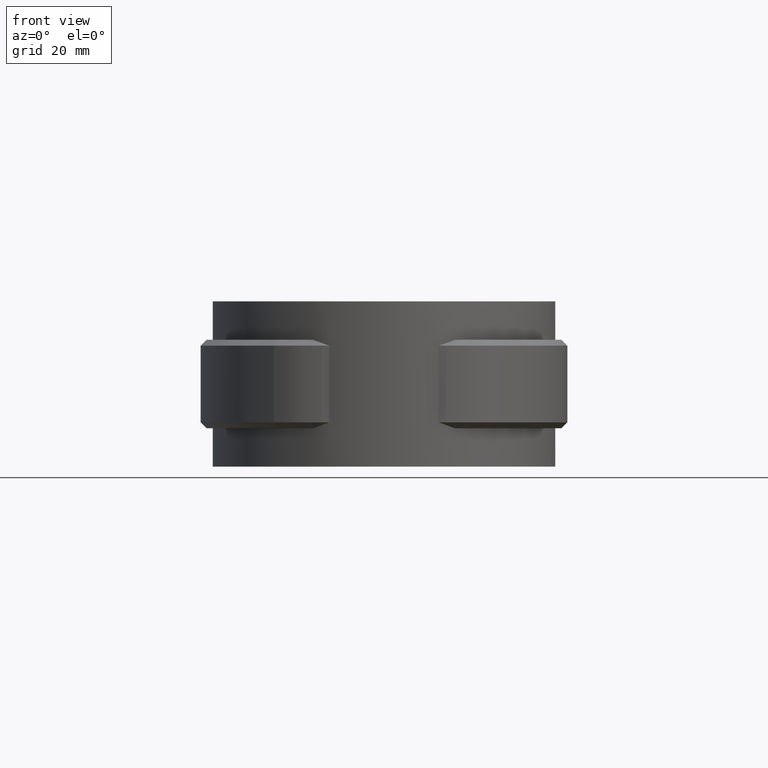
[diagram: clean part render]
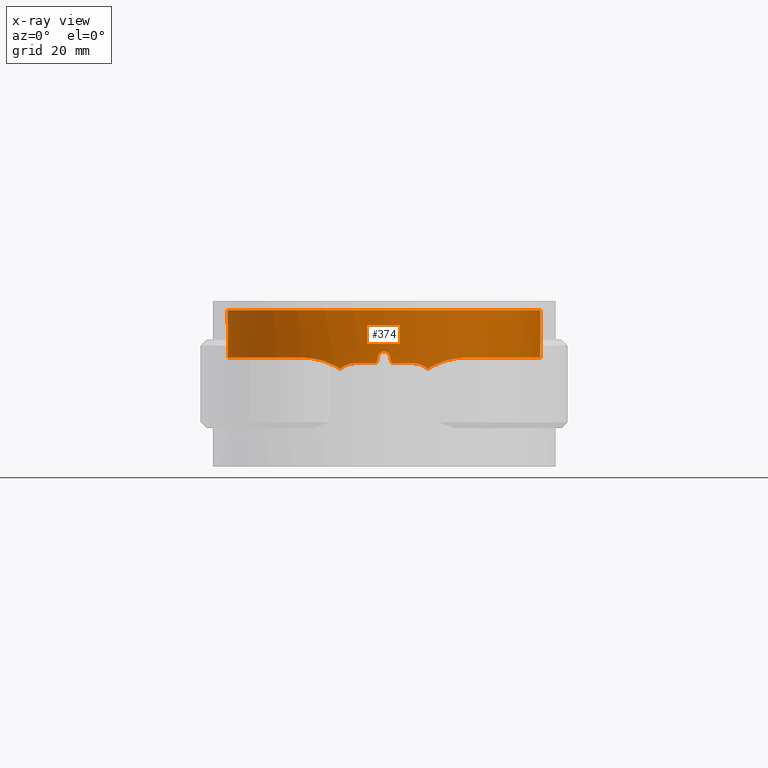
[diagram: x-ray — body ghosted, one internal face saturated and labeled with its STEP entity id]
A machine part, front view, then the same camera in x-ray: the body is ghosted and one INTERNAL B-rep face — a face not visible from any outside direction — is saturated and labeled: STEP entity #374.
In plain terms, the highlighted cylindrical surface (partial cylindrical patch) has radius 26.5 mm, axis along (0, 0, 1).
Its self-contained STEP definition (entity closure, byte-faithful):
#374 = ADVANCED_FACE( '', ( #746 ), #747, .F. );
#746 = FACE_OUTER_BOUND( '', #1703, .T. );
#747 = CYLINDRICAL_SURFACE( '', #1704, 26.5000000000000 );
#1703 = EDGE_LOOP( '', ( #3499, #3500, #3501, #3502, #3503, #3504, #3505, #3506, #3507, #3508, #3509, #3510, #3511, #3512, #3513, #3514, #3515, #3516 ) );
#1704 = AXIS2_PLACEMENT_3D( '', #3517, #3518, #3519 );
#3499 = ORIENTED_EDGE( '', *, *, #7262, .T. );
#3500 = ORIENTED_EDGE( '', *, *, #7227, .T. );
#3501 = ORIENTED_EDGE( '', *, *, #7229, .T. );
#3502 = ORIENTED_EDGE( '', *, *, #7263, .T. );
#3503 = ORIENTED_EDGE( '', *, *, #7264, .T. );
#3504 = ORIENTED_EDGE( '', *, *, #7265, .T. );
#3505 = ORIENTED_EDGE( '', *, *, #7266, .T. );
#3506 = ORIENTED_EDGE( '', *, *, #7267, .T. );
#3507 = ORIENTED_EDGE( '', *, *, #7268, .T. );
#3508 = ORIENTED_EDGE( '', *, *, #7269, .T. );
#3509 = ORIENTED_EDGE( '', *, *, #7270, .T. );
#3510 = ORIENTED_EDGE( '', *, *, #7271, .T. );
#3511 = ORIENTED_EDGE( '', *, *, #7249, .T. );
#3512 = ORIENTED_EDGE( '', *, *, #7272, .F. );
#3513 = ORIENTED_EDGE( '', *, *, #7214, .T. );
#3514 = ORIENTED_EDGE( '', *, *, #7273, .T. );
#3515 = ORIENTED_EDGE( '', *, *, #7245, .T. );
#3516 = ORIENTED_EDGE( '', *, *, #7257, .T. );
#3517 = CARTESIAN_POINT( '', ( 0.000000000000000, 0.000000000000000, 0.000000000000000 ) );
#3518 = DIRECTION( '', ( 0.000000000000000, 0.000000000000000, 1.00000000000000 ) );
#3519 = DIRECTION( '', ( 1.00000000000000, -6.12303176911189E-017, 0.000000000000000 ) );
#7214 = EDGE_CURVE( '', #8212, #8210, #8213, .T. );
#7227 = EDGE_CURVE( '', #8218, #8235, #8237, .T. );
#7229 = EDGE_CURVE( '', #8235, #8238, #8240, .T. );
#7245 = EDGE_CURVE( '', #8268, #8266, #8269, .T. );
#7249 = EDGE_CURVE( '', #8275, #8276, #8277, .T. );
#7257 = EDGE_CURVE( '', #8266, #8289, #8291, .T. );
#7262 = EDGE_CURVE( '', #8289, #8218, #8299, .T. );
#7263 = EDGE_CURVE( '', #8238, #8300, #8301, .T. );
#7264 = EDGE_CURVE( '', #8300, #8302, #8303, .T. );
#7265 = EDGE_CURVE( '', #8302, #8304, #8305, .T. );
#7266 = EDGE_CURVE( '', #8304, #8306, #8307, .T. );
#7267 = EDGE_CURVE( '', #8306, #8308, #8309, .T. );
#7268 = EDGE_CURVE( '', #8308, #8310, #8311, .T. );
#7269 = EDGE_CURVE( '', #8310, #8312, #8313, .T. );
#7270 = EDGE_CURVE( '', #8312, #8314, #8315, .T. );
#7271 = EDGE_CURVE( '', #8314, #8275, #8316, .T. );
#7272 = EDGE_CURVE( '', #8212, #8276, #8317, .T. );
#7273 = EDGE_CURVE( '', #8210, #8268, #8318, .T. );
#8210 = VERTEX_POINT( '', #9982 );
#8212 = VERTEX_POINT( '', #9984 );
#8213 = CIRCLE( '', #9985, 26.5000000000000 );
#8218 = VERTEX_POINT( '', #9991 );
#8235 = VERTEX_POINT( '', #10067 );
#8237 = B_SPLINE_CURVE_WITH_KNOTS( '', 3, ( #10070, #10071, #10072, #10073, #10074, #10075, #10076, #10077, #10078, #10079 ), .UNSPECIFIED., .F., .F., ( 4, 2, 2, 2, 4 ), ( 0.00840987655506248, 0.00908564043803561, 0.00976140432100873, 0.0104371682039819, 0.0111129320869550 ), .UNSPECIFIED. );
#8238 = VERTEX_POINT( '', #10080 );
#8240 = CIRCLE( '', #10083, 26.5000000000000 );
#8266 = VERTEX_POINT( '', #10371 );
#8268 = VERTEX_POINT( '', #10379 );
#8269 = B_SPLINE_CURVE_WITH_KNOTS( '', 3, ( #10380, #10381, #10382, #10383, #10384, #10385, #10386, #10387, #10388, #10389, #10390, #10391, #10392, #10393, #10394, #10395, #10396, #10397, #10398, #10399, #10400, #10401, #10402, #10403, #10404, #10405, #10406, #10407, #10408, #10409, #10410, #10411, #10412, #10413, #10414, #10415, #10416, #10417, #10418, #10419, #10420, #10421, #10422, #10423 ), .UNSPECIFIED., .F., .F., ( 4, 2, 2, 2, 2, 2, 2, 2, 2, 2, 2, 2, 2, 2, 2, 2, 2, 2, 2, 2, 2, 4 ), ( 6.99289389267470E-018, 0.00386953894842186, 0.00773907789684370, 0.00967384737105463, 0.0116086168452656, 0.0154781557936874, 0.0174129252678983, 0.0193476947421093, 0.0232172336905311, 0.0251520031647420, 0.0270867726389530, 0.0309563115873748, 0.0348258505357967, 0.0367606200100076, 0.0386953894842185, 0.0425649284326403, 0.0464344673810622, 0.0503040063294840, 0.0522387758036949, 0.0541735452779059, 0.0580430842263277, 0.0619126231747495 ), .UNSPECIFIED. );
#8275 = VERTEX_POINT( '', #10459 );
#8276 = VERTEX_POINT( '', #10460 );
#8277 = B_SPLINE_CURVE_WITH_KNOTS( '', 3, ( #10461, #10462, #10463, #10464, #10465, #10466, #10467, #10468, #10469, #10470, #10471, #10472, #10473, #10474, #10475, #10476, #10477, #10478, #10479, #10480, #10481, #10482, #10483, #10484, #10485, #10486, #10487, #10488, #10489, #10490, #10491, #10492, #10493, #10494, #10495, #10496, #10497, #10498, #10499, #10500, #10501, #10502, #10503, #10504 ), .UNSPECIFIED., .F., .F., ( 4, 2, 2, 2, 2, 2, 2, 2, 2, 2, 2, 2, 2, 2, 2, 2, 2, 2, 2, 2, 2, 4 ), ( 6.25463444138550E-018, 0.00386953623061384, 0.00773907246122767, 0.00967384057653460, 0.0116086086918415, 0.0154781449224554, 0.0174129130377623, 0.0193476811530692, 0.0232172173836830, 0.0251519854989899, 0.0270867536142969, 0.0309562898449107, 0.0348258260755245, 0.0367605941908314, 0.0386953623061384, 0.0425648985367522, 0.0464344347673660, 0.0503039709979798, 0.0522387391132867, 0.0541735072285937, 0.0580430434592075, 0.0619125796898213 ), .UNSPECIFIED. );
#8289 = VERTEX_POINT( '', #10599 );
#8291 = B_SPLINE_CURVE_WITH_KNOTS( '', 3, ( #10605, #10606, #10607, #10608, #10609, #10610, #10611, #10612, #10613, #10614 ), .UNSPECIFIED., .F., .F., ( 4, 2, 2, 2, 4 ), ( 0.000000000000000, 0.00167477549789547, 0.00334955099579095, 0.00502432649368642, 0.00669910199158190 ), .UNSPECIFIED. );
#8299 = B_SPLINE_CURVE_WITH_KNOTS( '', 3, ( #10643, #10644, #10645, #10646 ), .UNSPECIFIED., .F., .F., ( 4, 4 ), ( 5.06069652024954E-015, 0.00108053833113796 ), .UNSPECIFIED. );
#8300 = VERTEX_POINT( '', #10647 );
#8301 = B_SPLINE_CURVE_WITH_KNOTS( '', 3, ( #10648, #10649, #10650, #10651, #10652, #10653 ), .UNSPECIFIED., .F., .F., ( 4, 2, 4 ), ( 8.20849171219253E-018, 0.000336060167012381, 0.000672120334024754 ), .UNSPECIFIED. );
#8302 = VERTEX_POINT( '', #10654 );
#8303 = ELLIPSE( '', #10655, 120.722283805419, 26.5000000000000 );
#8304 = VERTEX_POINT( '', #10656 );
#8305 = B_SPLINE_CURVE_WITH_KNOTS( '', 3, ( #10657, #10658, #10659, #10660, #10661, #10662, #10663, #10664, #10665, #10666 ), .UNSPECIFIED., .F., .F., ( 4, 2, 2, 2, 4 ), ( 0.000000000000000, 0.000671613818563088, 0.00134322763712618, 0.00201484145568926, 0.00268645527425235 ), .UNSPECIFIED. );
#8306 = VERTEX_POINT( '', #10667 );
#8307 = ELLIPSE( '', #10668, 120.722345388658, 26.5000000000000 );
#8308 = VERTEX_POINT( '', #10669 );
#8309 = B_SPLINE_CURVE_WITH_KNOTS( '', 3, ( #10670, #10671, #10672, #10673, #10674, #10675 ), .UNSPECIFIED., .F., .F., ( 4, 2, 4 ), ( 2.04566856771261E-018, 0.000336065636993404, 0.000672131273986805 ), .UNSPECIFIED. );
#8310 = VERTEX_POINT( '', #10676 );
#8311 = CIRCLE( '', #10677, 26.5000000000000 );
#8312 = VERTEX_POINT( '', #10678 );
#8313 = B_SPLINE_CURVE_WITH_KNOTS( '', 3, ( #10679, #10680, #10681, #10682, #10683, #10684, #10685, #10686, #10687, #10688 ), .UNSPECIFIED., .F., .F., ( 4, 2, 2, 2, 4 ), ( 3.46944695195361E-018, 0.000676414896825245, 0.00135282979365049, 0.00202924469047573, 0.00270565958730097 ), .UNSPECIFIED. );
#8314 = VERTEX_POINT( '', #10689 );
#8315 = B_SPLINE_CURVE_WITH_KNOTS( '', 3, ( #10690, #10691, #10692, #10693 ), .UNSPECIFIED., .F., .F., ( 4, 4 ), ( 0.00823762377729515, 0.00931491977660909 ), .UNSPECIFIED. );
#8316 = B_SPLINE_CURVE_WITH_KNOTS( '', 3, ( #10694, #10695, #10696, #10697, #10698, #10699, #10700, #10701, #10702, #10703 ), .UNSPECIFIED., .F., .F., ( 4, 2, 2, 2, 4 ), ( 1.73472347597681E-018, 0.00166699003343402, 0.00333398006686803, 0.00500097010030205, 0.00666796013373607 ), .UNSPECIFIED. );
#8317 = LINE( '', #10704, #10705 );
#8318 = LINE( '', #10706, #10707 );
#9982 = CARTESIAN_POINT( '', ( 6.04385964912280, 25.8015844579690, 0.000000000000000 ) );
#9984 = CARTESIAN_POINT( '', ( -6.04385964912280, 25.8015844579689, 0.000000000000000 ) );
#9985 = AXIS2_PLACEMENT_3D( '', #13923, #13924, #13925 );
#9991 = CARTESIAN_POINT( '', ( 7.40905339638873, -25.4431902042464, -9.96101167128563 ) );
#10067 = CARTESIAN_POINT( '', ( 5.00000000000000, -26.0240273593462, -9.00000000000000 ) );
#10070 = CARTESIAN_POINT( '', ( 7.40905339638874, -25.4431902042464, -9.96101167128562 ) );
#10071 = CARTESIAN_POINT( '', ( 7.24763662634429, -25.4901947449008, -9.80785554460639 ) );
#10072 = CARTESIAN_POINT( '', ( 7.07408541333311, -25.5390720899026, -9.67215739365101 ) );
#10073 = CARTESIAN_POINT( '', ( 6.70316743055002, -25.6389241983042, -9.43442585938661 ) );
#10074 = CARTESIAN_POINT( '', ( 6.50370235312272, -25.6903936464893, -9.33179261985578 ) );
#10075 = CARTESIAN_POINT( '', ( 6.09403154520617, -25.7906426739549, -9.16807056670148 ) );
#10076 = CARTESIAN_POINT( '', ( 5.88307014533556, -25.8396775127156, -9.10601312208062 ) );
#10077 = CARTESIAN_POINT( '', ( 5.44861472041516, -25.9347651989478, -9.02182452402143 ) );
#10078 = CARTESIAN_POINT( '', ( 5.22445617697157, -25.9809025628126, -8.99999999999997 ) );
#10079 = CARTESIAN_POINT( '', ( 5.00000000000000, -26.0240273593462, -8.99999999999997 ) );
#10080 = CARTESIAN_POINT( '', ( 1.64999999999995, -26.4485821926242, -9.00000000000000 ) );
#10083 = AXIS2_PLACEMENT_3D( '', #13933, #13934, #13935 );
#10371 = CARTESIAN_POINT( '', ( 14.1618058989693, -22.3985100772333, -8.00447351404854 ) );
#10379 = CARTESIAN_POINT( '', ( 6.04385964912280, 25.8015844579690, -8.00552652639571 ) );
#10380 = CARTESIAN_POINT( '', ( 6.04385964912279, 25.8015844579690, -8.00552652639571 ) );
#10381 = CARTESIAN_POINT( '', ( 7.31779231474491, 25.5031737054822, -8.00680066398224 ) );
#10382 = CARTESIAN_POINT( '', ( 8.55377131480695, 25.1146868430128, -8.00847257392850 ) );
#10383 = CARTESIAN_POINT( '', ( 10.9529568115040, 24.1650002278904, -8.00944311649382 ) );
#10384 = CARTESIAN_POINT( '', ( 12.1161555429383, 23.6037820474472, -8.00874950359413 ) );
#10385 = CARTESIAN_POINT( '', ( 13.8051154540246, 22.6294327220562, -8.00678965374482 ) );
#10386 = CARTESIAN_POINT( '', ( 14.3608898139389, 22.2809092139690, -8.00601381780461 ) );
#10387 = CARTESIAN_POINT( '', ( 15.4379518302976, 21.5486360342049, -8.00479323261608 ) );
#10388 = CARTESIAN_POINT( '', ( 15.9602317834641, 21.1645629288973, -8.00438617796553 ) );
#10389 = CARTESIAN_POINT( '', ( 17.4794092076718, 19.9597380735161, -8.00454912951534 ) );
#10390 = CARTESIAN_POINT( '', ( 18.4288934061811, 19.0866556816490, -8.00595118561516 ) );
#10391 = CARTESIAN_POINT( '', ( 19.7578578109825, 17.6718897982799, -8.00708829540483 ) );
#10392 = CARTESIAN_POINT( '', ( 20.1849069197854, 17.1827089807674, -8.00733281936726 ) );
#10393 = CARTESIAN_POINT( '', ( 21.0062871984815, 16.1682359400479, -8.00740043787066 ) );
#10394 = CARTESIAN_POINT( '', ( 21.3987785267263, 15.6449107649844, -8.00722156171388 ) );
#10395 = CARTESIAN_POINT( '', ( 22.5087542741972, 14.0459888275849, -8.00621991817574 ) );
#10396 = CARTESIAN_POINT( '', ( 23.1649197282694, 12.9345445054854, -8.00482859728282 ) );
#10397 = CARTESIAN_POINT( '', ( 24.0254370712677, 11.2002169813777, -8.00436251705781 ) );
#10398 = CARTESIAN_POINT( '', ( 24.2915715128740, 10.6108693042291, -8.00461391317133 ) );
#10399 = CARTESIAN_POINT( '', ( 24.7817570326879, 9.40933113081498, -8.00557514383928 ) );
#10400 = CARTESIAN_POINT( '', ( 25.0065066405602, 8.79491476540917, -8.00623559022310 ) );
#10401 = CARTESIAN_POINT( '', ( 25.6104144339813, 6.93255168754606, -8.00796130609826 ) );
#10402 = CARTESIAN_POINT( '', ( 25.9172186839002, 5.67552279830799, -8.00863062021382 ) );
#10403 = CARTESIAN_POINT( '', ( 26.3459037111436, 3.13163551301320, -8.00788011598070 ) );
#10404 = CARTESIAN_POINT( '', ( 26.4677781884327, 1.84477610037727, -8.00646204217055 ) );
#10405 = CARTESIAN_POINT( '', ( 26.5077788053885, -0.108549885981653, -8.00484173662064 ) );
#10406 = CARTESIAN_POINT( '', ( 26.4969434753126, -0.764447916137473, -8.00443077871600 ) );
#10407 = CARTESIAN_POINT( '', ( 26.4276135288668, -2.06243480363791, -8.00450773618915 ) );
#10408 = CARTESIAN_POINT( '', ( 26.3692655960067, -2.70718132964276, -8.00491787987703 ) );
#10409 = CARTESIAN_POINT( '', ( 26.1245298605475, -4.62892372615887, -8.00633721979146 ) );
#10410 = CARTESIAN_POINT( '', ( 25.8688178453335, -5.89348838506354, -8.00742318277941 ) );
#10411 = CARTESIAN_POINT( '', ( 25.1704587203926, -8.38909708281754, -8.00767238813466 ) );
#10412 = CARTESIAN_POINT( '', ( 24.7233592121333, -9.62726296960625, -8.00681220864018 ) );
#10413 = CARTESIAN_POINT( '', ( 23.6662931529846, -11.9931335111023, -8.00482427667010 ) );
#10414 = CARTESIAN_POINT( '', ( 23.0551282017821, -13.1293258732354, -8.00406436445865 ) );
#10415 = CARTESIAN_POINT( '', ( 22.0155994256891, -14.7641598304526, -8.00536898848296 ) );
#10416 = CARTESIAN_POINT( '', ( 21.6485450174016, -15.2974827624214, -8.00601557135876 ) );
#10417 = CARTESIAN_POINT( '', ( 20.8725389324576, -16.3404283527111, -8.00717334363292 ) );
#10418 = CARTESIAN_POINT( '', ( 20.4618330437027, -16.8519314073990, -8.00768400690040 ) );
#10419 = CARTESIAN_POINT( '', ( 19.1829793855405, -18.3292148376876, -8.00852119271223 ) );
#10420 = CARTESIAN_POINT( '', ( 18.2664723389414, -19.2419828651324, -8.00802917772843 ) );
#10421 = CARTESIAN_POINT( '', ( 16.3088351287658, -20.9270115648196, -8.00585567480092 ) );
#10422 = CARTESIAN_POINT( '', ( 15.2677140476224, -21.6992824728386, -8.00416630566738 ) );
#10423 = CARTESIAN_POINT( '', ( 14.1618058989692, -22.3985100772332, -8.00447351404851 ) );
#10459 = CARTESIAN_POINT( '', ( -14.1618058989693, -22.3985100772333, -8.00447351404854 ) );
#10460 = CARTESIAN_POINT( '', ( -6.04385964912280, 25.8015844579690, -8.00552652639571 ) );
#10461 = CARTESIAN_POINT( '', ( -14.1618058989693, -22.3985100772333, -8.00447351404859 ) );
#10462 = CARTESIAN_POINT( '', ( -15.2677141178028, -21.6992824284660, -8.00416630564798 ) );
#10463 = CARTESIAN_POINT( '', ( -16.3082572931515, -20.9273801539132, -8.00585467293533 ) );
#10464 = CARTESIAN_POINT( '', ( -18.2640135401887, -19.2442278475867, -8.00802680755530 ) );
#10465 = CARTESIAN_POINT( '', ( -19.1792132196127, -18.3329629301038, -8.00851990508117 ) );
#10466 = CARTESIAN_POINT( '', ( -20.4558474097879, -16.8591442287993, -8.00768978457968 ) );
#10467 = CARTESIAN_POINT( '', ( -20.8668016576144, -16.3478029175757, -8.00718114852691 ) );
#10468 = CARTESIAN_POINT( '', ( -21.6445879843551, -15.3031330987358, -8.00602222067531 ) );
#10469 = CARTESIAN_POINT( '', ( -22.0122514376959, -14.7691742862876, -8.00537430097886 ) );
#10470 = CARTESIAN_POINT( '', ( -23.0529776806001, -13.1332063822245, -8.00406485606809 ) );
#10471 = CARTESIAN_POINT( '', ( -23.6641017592584, -11.9972839982562, -8.00482074789870 ) );
#10472 = CARTESIAN_POINT( '', ( -24.4563415853714, -10.2252623492736, -8.00630975782250 ) );
#10473 = CARTESIAN_POINT( '', ( -24.6995994326920, -9.62318774525236, -8.00680402810914 ) );
#10474 = CARTESIAN_POINT( '', ( -25.1433737712504, -8.39563636152793, -8.00745586914274 ) );
#10475 = CARTESIAN_POINT( '', ( -25.3427966647617, -7.77261941817447, -8.00760940230871 ) );
#10476 = CARTESIAN_POINT( '', ( -25.8678086759155, -5.89832992898657, -8.00742649565479 ) );
#10477 = CARTESIAN_POINT( '', ( -26.1237196597578, -4.63327268852307, -8.00634124430697 ) );
#10478 = CARTESIAN_POINT( '', ( -26.3686825406503, -2.71276007736838, -8.00492159637479 ) );
#10479 = CARTESIAN_POINT( '', ( -26.4270932018386, -2.06875271919096, -8.00451102121246 ) );
#10480 = CARTESIAN_POINT( '', ( -26.4966706716150, -0.772939992366890, -8.00442840486912 ) );
#10481 = CARTESIAN_POINT( '', ( -26.5077684204038, -0.118803319916952, -8.00483442167483 ) );
#10482 = CARTESIAN_POINT( '', ( -26.4683402519840, 1.83863202939378, -8.00645458891863 ) );
#10483 = CARTESIAN_POINT( '', ( -26.3464769226068, 3.12680952911330, -8.00787649080952 ) );
#10484 = CARTESIAN_POINT( '', ( -25.9182577615873, 5.67077584363222, -8.00863141288229 ) );
#10485 = CARTESIAN_POINT( '', ( -25.6118956117254, 6.92656354911355, -8.00796535784128 ) );
#10486 = CARTESIAN_POINT( '', ( -25.0098743546600, 8.78523218933770, -8.00624530325515 ) );
#10487 = CARTESIAN_POINT( '', ( -24.7847960316900, 9.40139780989537, -8.00558284396463 ) );
#10488 = CARTESIAN_POINT( '', ( -24.2941322376875, 10.6050711421534, -8.00461721360461 ) );
#10489 = CARTESIAN_POINT( '', ( -24.0278149582166, 11.1951376846527, -8.00436282436011 ) );
#10490 = CARTESIAN_POINT( '', ( -23.1671094778436, 12.9307013042653, -8.00482424000699 ) );
#10491 = CARTESIAN_POINT( '', ( -22.5112934490799, 14.0417452017999, -8.00621533072276 ) );
#10492 = CARTESIAN_POINT( '', ( -21.0340195413065, 16.1709295650804, -8.00755300473748 ) );
#10493 = CARTESIAN_POINT( '', ( -20.2060213654398, 17.1943416782269, -8.00747031112457 ) );
#10494 = CARTESIAN_POINT( '', ( -18.4323236097516, 19.0834517714593, -8.00595556276425 ) );
#10495 = CARTESIAN_POINT( '', ( -17.4827124231103, 19.9567757982323, -8.00455357607073 ) );
#10496 = CARTESIAN_POINT( '', ( -15.9650382017137, 21.1609212630344, -8.00438466043226 ) );
#10497 = CARTESIAN_POINT( '', ( -15.4435421604334, 21.5445929505580, -8.00478820519926 ) );
#10498 = CARTESIAN_POINT( '', ( -14.3687274561696, 22.2758198761939, -8.00600364412581 ) );
#10499 = CARTESIAN_POINT( '', ( -13.8131352438494, 22.6245773327820, -8.00677936172626 ) );
#10500 = CARTESIAN_POINT( '', ( -12.1209426110322, 23.6014738782921, -8.00874590251575 ) );
#10501 = CARTESIAN_POINT( '', ( -10.9560158421460, 24.1636842561059, -8.00944332977003 ) );
#10502 = CARTESIAN_POINT( '', ( -8.55443797688890, 25.1145278845073, -8.00847386621937 ) );
#10503 = CARTESIAN_POINT( '', ( -7.31779209674582, 25.5031737565471, -8.00680066376421 ) );
#10504 = CARTESIAN_POINT( '', ( -6.04385964912280, 25.8015844579690, -8.00552652639572 ) );
#10599 = CARTESIAN_POINT( '', ( 8.30733075074126, -25.1642257142460, -9.42766544081171 ) );
#10605 = CARTESIAN_POINT( '', ( 14.1618058989693, -22.3985100772333, -8.00447351404855 ) );
#10606 = CARTESIAN_POINT( '', ( 13.6884707807184, -22.6977835577782, -8.01309154205237 ) );
#10607 = CARTESIAN_POINT( '', ( 13.2078832355863, -22.9806575992301, -8.04385975464360 ) );
#10608 = CARTESIAN_POINT( '', ( 12.2328947523145, -23.5141465768318, -8.15389368339818 ) );
#10609 = CARTESIAN_POINT( '', ( 11.7370700934644, -23.7653437069035, -8.23345133159798 ) );
#10610 = CARTESIAN_POINT( '', ( 10.7444376197388, -24.2302999593834, -8.45110890051173 ) );
#10611 = CARTESIAN_POINT( '', ( 10.2444889412924, -24.4454753339551, -8.58968989647531 ) );
#10612 = CARTESIAN_POINT( '', ( 9.25901358741713, -24.8354884260265, -8.94342323706795 ) );
#10613 = CARTESIAN_POINT( '', ( 8.77451567882577, -25.0099964618424, -9.15687443275151 ) );
#10614 = CARTESIAN_POINT( '', ( 8.30733075074207, -25.1642257142511, -9.42766544082033 ) );
#10643 = CARTESIAN_POINT( '', ( 8.30733075074207, -25.1642257142511, -9.42766544082034 ) );
#10644 = CARTESIAN_POINT( '', ( 8.00463479929116, -25.2641531037987, -9.59715513122759 ) );
#10645 = CARTESIAN_POINT( '', ( 7.70459572691001, -25.3571283193119, -9.77398326207532 ) );
#10646 = CARTESIAN_POINT( '', ( 7.40905339638873, -25.4431902042464, -9.96101167128563 ) );
#10647 = CARTESIAN_POINT( '', ( 1.16219499999999, -26.4745028807337, -8.60975599999999 ) );
#10648 = CARTESIAN_POINT( '', ( 1.64999999999995, -26.4485821926242, -8.99999999999995 ) );
#10649 = CARTESIAN_POINT( '', ( 1.53658985016263, -26.4556573071188, -9.00000000048670 ) );
#10650 = CARTESIAN_POINT( '', ( 1.42647361285897, -26.4617281385548, -8.96143624100054 ) );
#10651 = CARTESIAN_POINT( '', ( 1.24912698353641, -26.4706925641542, -8.81966906383137 ) );
#10652 = CARTESIAN_POINT( '', ( 1.18713824945011, -26.4734079056958, -8.72061488866670 ) );
#10653 = CARTESIAN_POINT( '', ( 1.16219499999999, -26.4745028807337, -8.60975599999999 ) );
#10654 = CARTESIAN_POINT( '', ( 0.975609757981813, -26.4820351483818, -7.78048781325256 ) );
#10655 = AXIS2_PLACEMENT_3D( '', #13936, #13937, #13938 );
#10656 = CARTESIAN_POINT( '', ( -0.975610000000026, -26.4820351394658, -7.78048800000004 ) );
#10657 = CARTESIAN_POINT( '', ( 0.975609757981815, -26.4820351483818, -7.78048781325256 ) );
#10658 = CARTESIAN_POINT( '', ( 0.925760934745036, -26.4838716008335, -7.55893757788718 ) );
#10659 = CARTESIAN_POINT( '', ( 0.802002648933445, -26.4884549042838, -7.36098152096842 ) );
#10660 = CARTESIAN_POINT( '', ( 0.447409999263894, -26.4968163324904, -7.07729898640315 ) );
#10661 = CARTESIAN_POINT( '', ( 0.227095065698496, -26.5000000074918, -6.99999982074384 ) );
#10662 = CARTESIAN_POINT( '', ( -0.227096814142785, -26.4999999925082, -7.00000017238921 ) );
#10663 = CARTESIAN_POINT( '', ( -0.447437696300520, -26.4968157672137, -7.07731617470090 ) );
#10664 = CARTESIAN_POINT( '', ( -0.802001188535608, -26.4884548508841, -7.36098500294529 ) );
#10665 = CARTESIAN_POINT( '', ( -0.925761217195687, -26.4838715908841, -7.55893774631123 ) );
#10666 = CARTESIAN_POINT( '', ( -0.975610000000026, -26.4820351394658, -7.78048800000004 ) );
#10667 = CARTESIAN_POINT( '', ( -1.16219512100914, -26.4745028754215, -8.60975609337373 ) );
#10668 = AXIS2_PLACEMENT_3D( '', #13939, #13940, #13941 );
#10669 = CARTESIAN_POINT( '', ( -1.65000000000003, -26.4485821926242, -9.00000000000000 ) );
#10670 = CARTESIAN_POINT( '', ( -1.16219512100915, -26.4745028754215, -8.60975609337372 ) );
#10671 = CARTESIAN_POINT( '', ( -1.18713836233016, -26.4734079006263, -8.72061494813270 ) );
#10672 = CARTESIAN_POINT( '', ( -1.24912139695326, -26.4706928381728, -8.81966360564067 ) );
#10673 = CARTESIAN_POINT( '', ( -1.42647421663325, -26.4617281164043, -8.96143764402375 ) );
#10674 = CARTESIAN_POINT( '', ( -1.53658988103453, -26.4556573051929, -8.99999999999994 ) );
#10675 = CARTESIAN_POINT( '', ( -1.65000000000003, -26.4485821926242, -8.99999999999994 ) );
#10676 = CARTESIAN_POINT( '', ( -5.00000000000005, -26.0240273593462, -9.00000000000000 ) );
#10677 = AXIS2_PLACEMENT_3D( '', #13942, #13943, #13944 );
#10678 = CARTESIAN_POINT( '', ( -7.40905339637111, -25.4431902042387, -9.96101167126880 ) );
#10679 = CARTESIAN_POINT( '', ( -5.00000000000005, -26.0240273593462, -8.99999999999997 ) );
#10680 = CARTESIAN_POINT( '', ( -5.22465831940560, -25.9808637251586, -8.99999999999997 ) );
#10681 = CARTESIAN_POINT( '', ( -5.44511352916355, -25.9354941134036, -9.02142480651077 ) );
#10682 = CARTESIAN_POINT( '', ( -5.87812327510128, -25.8407968726698, -9.10478116400010 ) );
#10683 = CARTESIAN_POINT( '', ( -6.09242669101966, -25.7910319178135, -9.16745930223137 ) );
#10684 = CARTESIAN_POINT( '', ( -6.50448899229102, -25.6902046181086, -9.33207695017514 ) );
#10685 = CARTESIAN_POINT( '', ( -6.70009805336685, -25.6397270549142, -9.43272598848543 ) );
#10686 = CARTESIAN_POINT( '', ( -7.07117712777611, -25.5398780616284, -9.67003029024133 ) );
#10687 = CARTESIAN_POINT( '', ( -7.24827164238527, -25.4900098283191, -9.80845806315192 ) );
#10688 = CARTESIAN_POINT( '', ( -7.40905339637287, -25.4431902042510, -9.96101167127047 ) );
#10689 = CARTESIAN_POINT( '', ( -8.30733075074207, -25.1642257142511, -9.42766544082034 ) );
#10690 = CARTESIAN_POINT( '', ( -7.40905339638528, -25.4431902042474, -9.96101167128775 ) );
#10691 = CARTESIAN_POINT( '', ( -7.70483756064785, -25.3570578973616, -9.77383022213939 ) );
#10692 = CARTESIAN_POINT( '', ( -8.00486228869394, -25.2640780039434, -9.59702775222478 ) );
#10693 = CARTESIAN_POINT( '', ( -8.30733075074207, -25.1642257142511, -9.42766544082034 ) );
#10694 = CARTESIAN_POINT( '', ( -8.30733075074207, -25.1642257142511, -9.42766544082034 ) );
#10695 = CARTESIAN_POINT( '', ( -8.77575182529439, -25.0095883794445, -9.15615793414845 ) );
#10696 = CARTESIAN_POINT( '', ( -9.25938621032882, -24.8352920527789, -8.94340781263706 ) );
#10697 = CARTESIAN_POINT( '', ( -10.2398750389022, -24.4473500307604, -8.59122822578753 ) );
#10698 = CARTESIAN_POINT( '', ( -10.7390116837787, -24.2327306782470, -8.45247219969515 ) );
#10699 = CARTESIAN_POINT( '', ( -11.7337627867504, -23.7670027334761, -8.23400451403673 ) );
#10700 = CARTESIAN_POINT( '', ( -12.2293522364927, -23.5160205977103, -8.15437052766031 ) );
#10701 = CARTESIAN_POINT( '', ( -13.2067246511624, -22.9813555924041, -8.04391383047820 ) );
#10702 = CARTESIAN_POINT( '', ( -13.6880782014882, -22.6980317720942, -8.01309868975524 ) );
#10703 = CARTESIAN_POINT( '', ( -14.1618058989693, -22.3985100772333, -8.00447351404851 ) );
#10704 = CARTESIAN_POINT( '', ( -6.04385964912280, 25.8015844579689, 0.000000000000000 ) );
#10705 = VECTOR( '', #13945, 1000.00000000000 );
#10706 = CARTESIAN_POINT( '', ( 6.04385964912280, 25.8015844579690, 0.000000000000000 ) );
#10707 = VECTOR( '', #13946, 1000.00000000000 );
#13923 = CARTESIAN_POINT( '', ( 0.000000000000000, 0.000000000000000, 0.000000000000000 ) );
#13924 = DIRECTION( '', ( 0.000000000000000, 0.000000000000000, 1.00000000000000 ) );
#13925 = DIRECTION( '', ( 1.00000000000000, -6.12303176911189E-017, 0.000000000000000 ) );
#13933 = CARTESIAN_POINT( '', ( 0.000000000000000, 0.000000000000000, -9.00000000000001 ) );
#13934 = DIRECTION( '', ( 6.12303176911189E-017, -3.13145149531439E-016, -1.00000000000000 ) );
#13935 = DIRECTION( '', ( 0.000000000000000, 1.00000000000000, -3.13145149531439E-016 ) );
#13936 = CARTESIAN_POINT( '', ( 0.000000000000000, 0.000000000000000, -3.44444212055032 ) );
#13937 = DIRECTION( '', ( -0.975609781292647, -1.70596433957388E-016, -0.219512083143762 ) );
#13938 = DIRECTION( '', ( 0.219512083143762, 3.83841770684855E-017, -0.975609781292647 ) );
#13939 = CARTESIAN_POINT( '', ( 0.000000000000000, 0.000000000000000, -3.44443890776446 ) );
#13940 = DIRECTION( '', ( 0.975609806487711, 3.31181834532395E-017, -0.219511971165610 ) );
#13941 = DIRECTION( '', ( -0.219511971165610, -7.45158328965245E-018, -0.975609806487711 ) );
#13942 = CARTESIAN_POINT( '', ( 0.000000000000000, 0.000000000000000, -9.00000000000001 ) );
#13943 = DIRECTION( '', ( 6.12303176911189E-017, -3.13145149531439E-016, -1.00000000000000 ) );
#13944 = DIRECTION( '', ( 0.000000000000000, 1.00000000000000, -3.13145149531439E-016 ) );
#13945 = DIRECTION( '', ( 0.000000000000000, 0.000000000000000, -1.00000000000000 ) );
#13946 = DIRECTION( '', ( 0.000000000000000, 0.000000000000000, -1.00000000000000 ) );